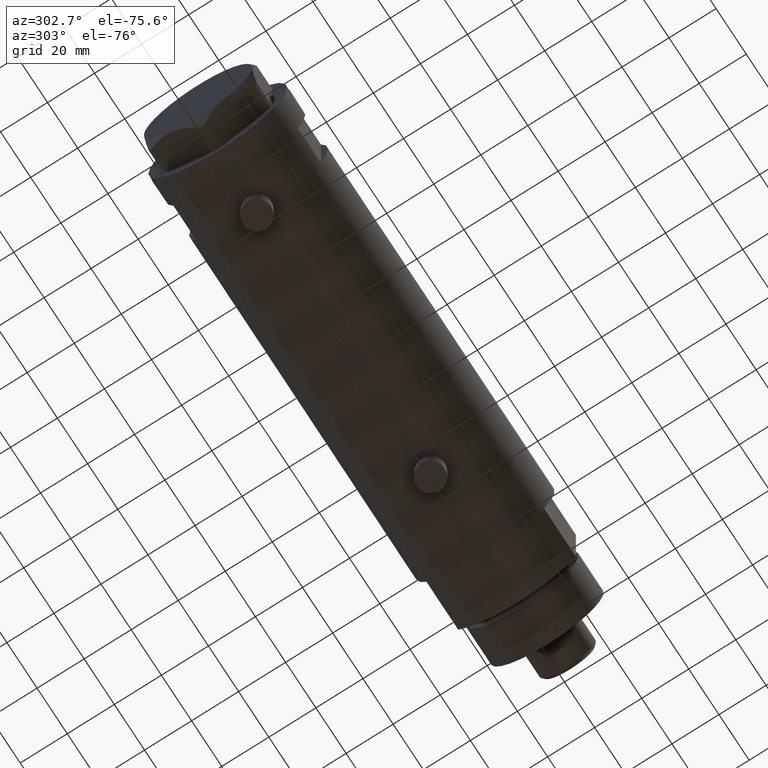
[diagram: clean part render]
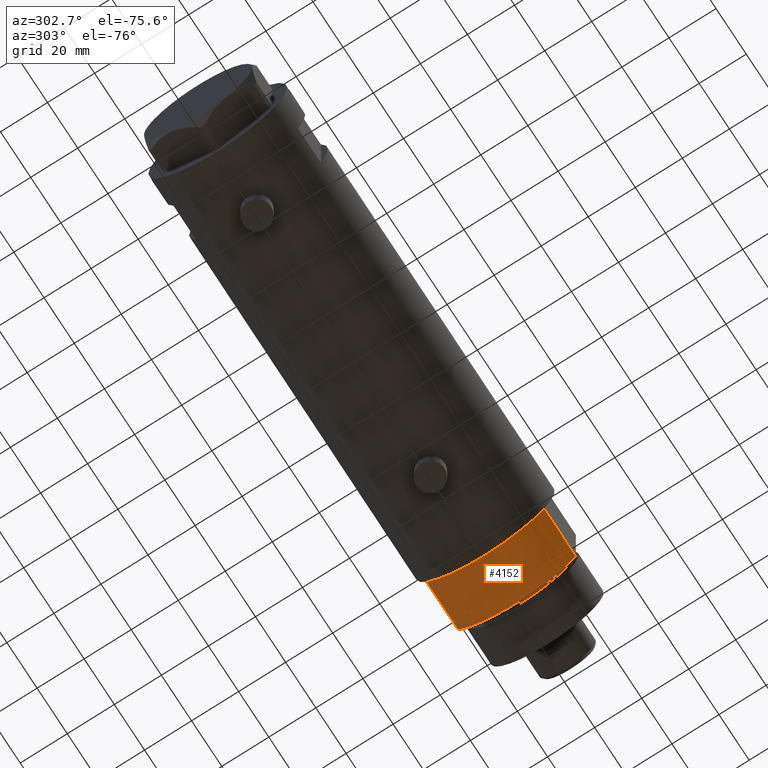
[diagram: same view with one face highlighted and labeled with its STEP entity id]
A machine part, auxiliary view. The second image highlights one B-rep face of the part: STEP entity #4152.
In plain terms, the highlighted cylindrical surface (partial cylindrical patch) has radius 29.5 mm, axis along (-1, -0, 0).
Its self-contained STEP definition (entity closure, byte-faithful):
#52 = DIRECTION ( 'NONE',  ( 0.000000000000000000, 0.000000000000000000, 1.000000000000000000 ) ) ;
#157 = CARTESIAN_POINT ( 'NONE',  ( 0.000000000000000000, 0.000000000000000000, 21.00000000000000000 ) ) ;
#275 = CARTESIAN_POINT ( 'NONE',  ( 15.66045976336583401, -25.00000000000000000, 0.000000000000000000 ) ) ;
#600 = FACE_OUTER_BOUND ( 'NONE', #2105, .T. ) ;
#804 = EDGE_CURVE ( 'NONE', #1176, #1723, #2712, .T. ) ;
#921 = ORIENTED_EDGE ( 'NONE', *, *, #2566, .T. ) ;
#935 = CIRCLE ( 'NONE', #1662, 29.50000000000000355 ) ;
#989 = DIRECTION ( 'NONE',  ( -0.000000000000000000, -0.000000000000000000, 1.000000000000000000 ) ) ;
#1040 = CARTESIAN_POINT ( 'NONE',  ( 15.66045976336582690, 25.00000000000000000, 0.000000000000000000 ) ) ;
#1176 = VERTEX_POINT ( 'NONE', #1228 ) ;
#1228 = CARTESIAN_POINT ( 'NONE',  ( 15.66045976336583401, -25.00000000000000000, 0.000000000000000000 ) ) ;
#1313 = DIRECTION ( 'NONE',  ( 0.000000000000000000, 0.000000000000000000, 1.000000000000000000 ) ) ;
#1416 = EDGE_CURVE ( 'NONE', #3649, #2881, #4419, .T. ) ;
#1596 = AXIS2_PLACEMENT_3D ( 'NONE', #157, #2980, #3222 ) ;
#1662 = AXIS2_PLACEMENT_3D ( 'NONE', #3123, #52, #2299 ) ;
#1712 = CARTESIAN_POINT ( 'NONE',  ( 15.66045976336583401, 25.00000000000000000, 0.000000000000000000 ) ) ;
#1723 = VERTEX_POINT ( 'NONE', #3319 ) ;
#1939 = CYLINDRICAL_SURFACE ( 'NONE', #1596, 29.50000000000000355 ) ;
#1997 = ORIENTED_EDGE ( 'NONE', *, *, #1416, .T. ) ;
#2071 = DIRECTION ( 'NONE',  ( 1.000000000000000000, 0.000000000000000000, 0.000000000000000000 ) ) ;
#2105 = EDGE_LOOP ( 'NONE', ( #3109, #4319, #921, #1997 ) ) ;
#2299 = DIRECTION ( 'NONE',  ( 1.000000000000000000, 0.000000000000000000, 0.000000000000000000 ) ) ;
#2566 = EDGE_CURVE ( 'NONE', #1176, #3649, #935, .T. ) ;
#2712 = LINE ( 'NONE', #275, #3797 ) ;
#2736 = VECTOR ( 'NONE', #3824, 1000.000000000000000 ) ;
#2881 = VERTEX_POINT ( 'NONE', #3158 ) ;
#2980 = DIRECTION ( 'NONE',  ( -0.000000000000000000, -0.000000000000000000, -1.000000000000000000 ) ) ;
#3084 = CIRCLE ( 'NONE', #3382, 29.50000000000000355 ) ;
#3109 = ORIENTED_EDGE ( 'NONE', *, *, #4268, .F. ) ;
#3123 = CARTESIAN_POINT ( 'NONE',  ( 0.000000000000000000, 0.000000000000000000, 0.000000000000000000 ) ) ;
#3158 = CARTESIAN_POINT ( 'NONE',  ( 15.66045976336583045, 24.99999999999999645, 20.99999999999999645 ) ) ;
#3222 = DIRECTION ( 'NONE',  ( -1.000000000000000000, 0.000000000000000000, 0.000000000000000000 ) ) ;
#3319 = CARTESIAN_POINT ( 'NONE',  ( 15.66045976336583045, -25.00000000000000000, 21.00000000000000355 ) ) ;
#3382 = AXIS2_PLACEMENT_3D ( 'NONE', #3754, #1313, #2071 ) ;
#3649 = VERTEX_POINT ( 'NONE', #1040 ) ;
#3754 = CARTESIAN_POINT ( 'NONE',  ( 0.000000000000000000, 0.000000000000000000, 21.00000000000000000 ) ) ;
#3797 = VECTOR ( 'NONE', #989, 1000.000000000000000 ) ;
#3824 = DIRECTION ( 'NONE',  ( -0.000000000000000000, -0.000000000000000000, 1.000000000000000000 ) ) ;
#4152 = ADVANCED_FACE ( 'NONE', ( #600 ), #1939, .T. ) ;
#4268 = EDGE_CURVE ( 'NONE', #1723, #2881, #3084, .T. ) ;
#4319 = ORIENTED_EDGE ( 'NONE', *, *, #804, .F. ) ;
#4419 = LINE ( 'NONE', #1712, #2736 ) ;